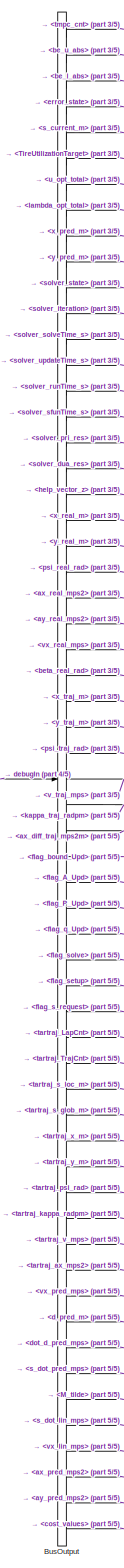
[diagram: root canvas - part 1/5, left side, full height]
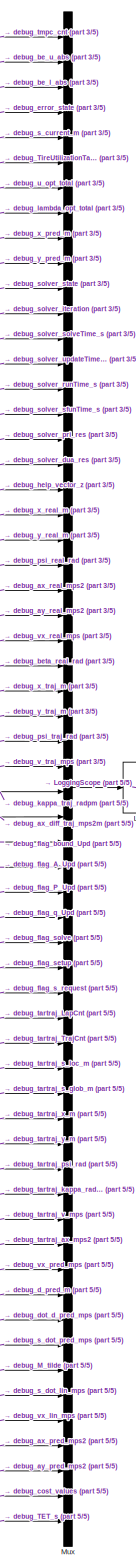
[diagram: root canvas - part 2/5, right side, full height]
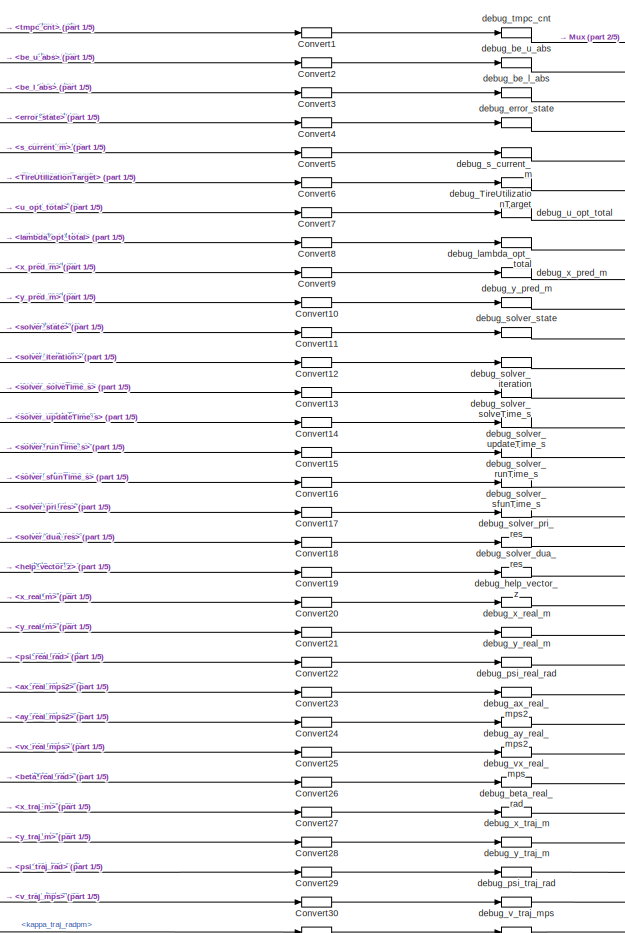
[diagram: root canvas - part 3/5, top center region]
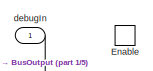
[diagram: root canvas - part 4/5, top left region]
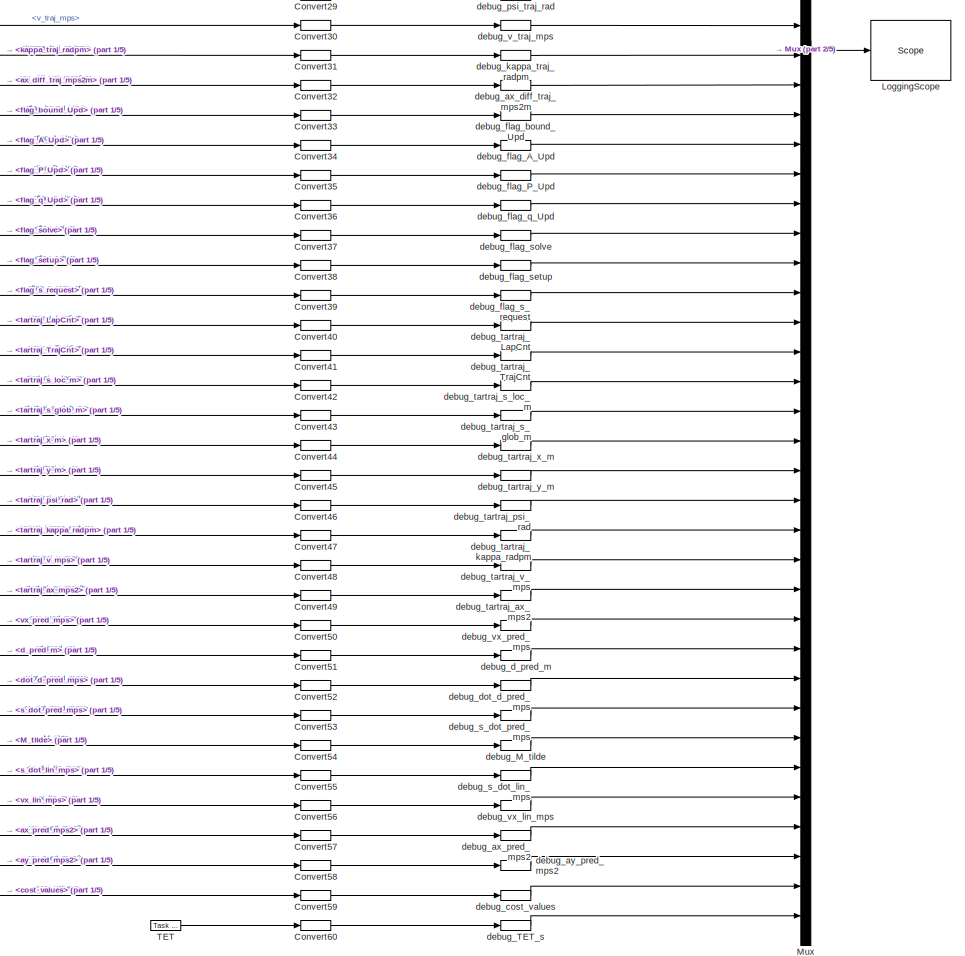
[diagram: root canvas - part 5/5, bottom center region]
MODEL slx_dabca4dcf8a6
KIND model
CONFIG AbsTol = auto
CONFIG EnableMultiTasking = on
CONFIG FixedStep = tS
CONFIG MaxStep = auto
CONFIG MinStep = auto
CONFIG RelTol = 1e-3
CONFIG SampleTimeConstraint = Unconstrained
CONFIG Solver = FixedStepDiscrete
CONFIG SolverName = FixedStepDiscrete
CONFIG StartTime = 0.0
CONFIG StopTime = 10.0
BLOCK [BusSelector] BusOutput
  OutputAsBus = off
  OutputSignals = tmpc_cnt,be_u_abs,be_l_abs,error_state,s_current_m,TireUtilizationTarget,u_opt_total,lambda_opt_total,x_pred_m,y_pred_m,solver_state,solver_iteration,solver_solveTime_s,solver_updateTime_s,solver_runTime_s,solver_sfunTime_s,solver_pri_res,solver_dua_res,help_vector_z,x_real_m,y_real_m,psi_real_rad,ax_real_mps2,ay_real_mps2,vx_real_mps,beta_real_rad,x_traj_m,y_traj_m,psi_traj_rad,v_traj_mps,kappa_t...<+389ch>
  Ports = [1, 59]
BLOCK [DataTypeConversion] Convert1
  OutDataTypeStr = single
BLOCK [DataTypeConversion] Convert10
  OutDataTypeStr = single
BLOCK [DataTypeConversion] Convert11
  OutDataTypeStr = single
BLOCK [DataTypeConversion] Convert12
  OutDataTypeStr = single
BLOCK [DataTypeConversion] Convert13
  OutDataTypeStr = single
BLOCK [DataTypeConversion] Convert14
  OutDataTypeStr = single
BLOCK [DataTypeConversion] Convert15
  OutDataTypeStr = single
BLOCK [DataTypeConversion] Convert16
  OutDataTypeStr = single
BLOCK [DataTypeConversion] Convert17
  OutDataTypeStr = single
BLOCK [DataTypeConversion] Convert18
  OutDataTypeStr = single
BLOCK [DataTypeConversion] Convert19
  OutDataTypeStr = single
BLOCK [DataTypeConversion] Convert2
  OutDataTypeStr = single
BLOCK [DataTypeConversion] Convert20
  OutDataTypeStr = single
BLOCK [DataTypeConversion] Convert21
  OutDataTypeStr = single
BLOCK [DataTypeConversion] Convert22
  OutDataTypeStr = single
BLOCK [DataTypeConversion] Convert23
  OutDataTypeStr = single
BLOCK [DataTypeConversion] Convert24
  OutDataTypeStr = single
BLOCK [DataTypeConversion] Convert25
  OutDataTypeStr = single
BLOCK [DataTypeConversion] Convert26
  OutDataTypeStr = single
BLOCK [DataTypeConversion] Convert27
  OutDataTypeStr = single
BLOCK [DataTypeConversion] Convert28
  OutDataTypeStr = single
BLOCK [DataTypeConversion] Convert29
  OutDataTypeStr = single
BLOCK [DataTypeConversion] Convert3
  OutDataTypeStr = single
BLOCK [DataTypeConversion] Convert30
  OutDataTypeStr = single
BLOCK [DataTypeConversion] Convert31
  OutDataTypeStr = single
BLOCK [DataTypeConversion] Convert32
  OutDataTypeStr = single
BLOCK [DataTypeConversion] Convert33
  OutDataTypeStr = single
BLOCK [DataTypeConversion] Convert34
  OutDataTypeStr = single
BLOCK [DataTypeConversion] Convert35
  OutDataTypeStr = single
BLOCK [DataTypeConversion] Convert36
  OutDataTypeStr = single
BLOCK [DataTypeConversion] Convert37
  OutDataTypeStr = single
BLOCK [DataTypeConversion] Convert38
  OutDataTypeStr = single
BLOCK [DataTypeConversion] Convert39
  OutDataTypeStr = single
BLOCK [DataTypeConversion] Convert4
  OutDataTypeStr = single
BLOCK [DataTypeConversion] Convert40
  OutDataTypeStr = single
BLOCK [DataTypeConversion] Convert41
  OutDataTypeStr = single
BLOCK [DataTypeConversion] Convert42
  OutDataTypeStr = single
BLOCK [DataTypeConversion] Convert43
  OutDataTypeStr = single
BLOCK [DataTypeConversion] Convert44
  OutDataTypeStr = single
BLOCK [DataTypeConversion] Convert45
  OutDataTypeStr = single
BLOCK [DataTypeConversion] Convert46
  OutDataTypeStr = single
BLOCK [DataTypeConversion] Convert47
  OutDataTypeStr = single
BLOCK [DataTypeConversion] Convert48
  OutDataTypeStr = single
BLOCK [DataTypeConversion] Convert49
  OutDataTypeStr = single
BLOCK [DataTypeConversion] Convert5
  OutDataTypeStr = single
BLOCK [DataTypeConversion] Convert50
  OutDataTypeStr = single
BLOCK [DataTypeConversion] Convert51
  OutDataTypeStr = single
BLOCK [DataTypeConversion] Convert52
  OutDataTypeStr = single
BLOCK [DataTypeConversion] Convert53
  OutDataTypeStr = single
BLOCK [DataTypeConversion] Convert54
  OutDataTypeStr = single
BLOCK [DataTypeConversion] Convert55
  OutDataTypeStr = single
BLOCK [DataTypeConversion] Convert56
  OutDataTypeStr = single
BLOCK [DataTypeConversion] Convert57
  OutDataTypeStr = single
BLOCK [DataTypeConversion] Convert58
  OutDataTypeStr = single
BLOCK [DataTypeConversion] Convert59
  OutDataTypeStr = single
BLOCK [DataTypeConversion] Convert6
  OutDataTypeStr = single
BLOCK [DataTypeConversion] Convert60
  OutDataTypeStr = single
BLOCK [DataTypeConversion] Convert7
  OutDataTypeStr = single
BLOCK [DataTypeConversion] Convert8
  OutDataTypeStr = single
BLOCK [DataTypeConversion] Convert9
  OutDataTypeStr = single
BLOCK [EnablePort] Enable
  Ports = []
BLOCK [Reference] LoggingScope  REF=slrtlib/Displays and
Logging/Scope 
  Ports = [1]
  SourceBlock = slrtlib/Displays and\nLogging/Scope
  SourceProductBaseCode = XP
  SourceProductName = Simulink Real-Time
  SourceType = xpcscopeblock
BLOCK [Mux] Mux
  DisplayOption = bar
  Inputs = 60
  Ports = [60, 1]
BLOCK [Reference] TET  REF=slrtlib/Target
Management/Execution
Parameters/Task Execution
Time 
  Ports = [0, 1]
  SourceBlock = slrtlib/Target\nManagement/Execution\nParameters/Task Execution\nTime
  SourceProductBaseCode = XP
  SourceProductName = Simulink Real-Time
  SourceType = xpctet
BLOCK [Inport] debugIn
  IconDisplay = Port number
  OutDataTypeStr = Bus: mvdc_tube_mpc_debug
BLOCK [SignalConversion] debug_M_tilde
  OverrideOpt = off
BLOCK [SignalConversion] debug_TET_s
  OverrideOpt = off
BLOCK [SignalConversion] debug_TireUtilizationTarget
  OverrideOpt = off
BLOCK [SignalConversion] debug_ax_diff_traj_mps2m
  OverrideOpt = off
BLOCK [SignalConversion] debug_ax_pred_mps2
  OverrideOpt = off
BLOCK [SignalConversion] debug_ax_real_mps2
  OverrideOpt = off
BLOCK [SignalConversion] debug_ay_pred_mps2
  OverrideOpt = off
BLOCK [SignalConversion] debug_ay_real_mps2
  OverrideOpt = off
BLOCK [SignalConversion] debug_be_l_abs
  OverrideOpt = off
BLOCK [SignalConversion] debug_be_u_abs
  OverrideOpt = off
BLOCK [SignalConversion] debug_beta_real_rad
  OverrideOpt = off
BLOCK [SignalConversion] debug_cost_values
  OverrideOpt = off
BLOCK [SignalConversion] debug_d_pred_m
  OverrideOpt = off
BLOCK [SignalConversion] debug_dot_d_pred_mps
  OverrideOpt = off
BLOCK [SignalConversion] debug_error_state
  OverrideOpt = off
BLOCK [SignalConversion] debug_flag_A_Upd
  OverrideOpt = off
BLOCK [SignalConversion] debug_flag_P_Upd
  OverrideOpt = off
BLOCK [SignalConversion] debug_flag_bound_Upd
  OverrideOpt = off
BLOCK [SignalConversion] debug_flag_q_Upd
  OverrideOpt = off
BLOCK [SignalConversion] debug_flag_s_request
  OverrideOpt = off
BLOCK [SignalConversion] debug_flag_setup
  OverrideOpt = off
BLOCK [SignalConversion] debug_flag_solve
  OverrideOpt = off
BLOCK [SignalConversion] debug_help_vector_z
  OverrideOpt = off
BLOCK [SignalConversion] debug_kappa_traj_radpm
  OverrideOpt = off
BLOCK [SignalConversion] debug_lambda_opt_total
  OverrideOpt = off
BLOCK [SignalConversion] debug_psi_real_rad
  OverrideOpt = off
BLOCK [SignalConversion] debug_psi_traj_rad
  OverrideOpt = off
BLOCK [SignalConversion] debug_s_current_m
  OverrideOpt = off
BLOCK [SignalConversion] debug_s_dot_lin_mps
  OverrideOpt = off
BLOCK [SignalConversion] debug_s_dot_pred_mps
  OverrideOpt = off
BLOCK [SignalConversion] debug_solver_dua_res
  OverrideOpt = off
BLOCK [SignalConversion] debug_solver_iteration
  OverrideOpt = off
BLOCK [SignalConversion] debug_solver_pri_res
  OverrideOpt = off
BLOCK [SignalConversion] debug_solver_runTime_s
  OverrideOpt = off
BLOCK [SignalConversion] debug_solver_sfunTime_s
  OverrideOpt = off
BLOCK [SignalConversion] debug_solver_solveTime_s
  OverrideOpt = off
BLOCK [SignalConversion] debug_solver_state
  OverrideOpt = off
BLOCK [SignalConversion] debug_solver_updateTime_s
  OverrideOpt = off
BLOCK [SignalConversion] debug_tartraj_LapCnt
  OverrideOpt = off
BLOCK [SignalConversion] debug_tartraj_TrajCnt
  OverrideOpt = off
BLOCK [SignalConversion] debug_tartraj_ax_mps2
  OverrideOpt = off
BLOCK [SignalConversion] debug_tartraj_kappa_radpm
  OverrideOpt = off
BLOCK [SignalConversion] debug_tartraj_psi_rad
  OverrideOpt = off
BLOCK [SignalConversion] debug_tartraj_s_glob_m
  OverrideOpt = off
BLOCK [SignalConversion] debug_tartraj_s_loc_m
  OverrideOpt = off
BLOCK [SignalConversion] debug_tartraj_v_mps
  OverrideOpt = off
BLOCK [SignalConversion] debug_tartraj_x_m
  OverrideOpt = off
BLOCK [SignalConversion] debug_tartraj_y_m
  OverrideOpt = off
BLOCK [SignalConversion] debug_tmpc_cnt
  OverrideOpt = off
BLOCK [SignalConversion] debug_u_opt_total
  OverrideOpt = off
BLOCK [SignalConversion] debug_v_traj_mps
  OverrideOpt = off
BLOCK [SignalConversion] debug_vx_lin_mps
  OverrideOpt = off
BLOCK [SignalConversion] debug_vx_pred_mps
  OverrideOpt = off
BLOCK [SignalConversion] debug_vx_real_mps
  OverrideOpt = off
BLOCK [SignalConversion] debug_x_pred_m
  OverrideOpt = off
BLOCK [SignalConversion] debug_x_real_m
  OverrideOpt = off
BLOCK [SignalConversion] debug_x_traj_m
  OverrideOpt = off
BLOCK [SignalConversion] debug_y_pred_m
  OverrideOpt = off
BLOCK [SignalConversion] debug_y_real_m
  OverrideOpt = off
BLOCK [SignalConversion] debug_y_traj_m
  OverrideOpt = off
LINE BusOutput:1 -> Convert1:1
LINE BusOutput:10 -> Convert10:1
LINE BusOutput:11 -> Convert11:1
LINE BusOutput:12 -> Convert12:1
LINE BusOutput:13 -> Convert13:1
LINE BusOutput:14 -> Convert14:1
LINE BusOutput:15 -> Convert15:1
LINE BusOutput:16 -> Convert16:1
LINE BusOutput:17 -> Convert17:1
LINE BusOutput:18 -> Convert18:1
LINE BusOutput:19 -> Convert19:1
LINE BusOutput:2 -> Convert2:1
LINE BusOutput:20 -> Convert20:1
LINE BusOutput:21 -> Convert21:1
LINE BusOutput:22 -> Convert22:1
LINE BusOutput:23 -> Convert23:1
LINE BusOutput:24 -> Convert24:1
LINE BusOutput:25 -> Convert25:1
LINE BusOutput:26 -> Convert26:1
LINE BusOutput:27 -> Convert27:1
LINE BusOutput:28 -> Convert28:1
LINE BusOutput:29 -> Convert29:1
LINE BusOutput:3 -> Convert3:1
LINE BusOutput:30 -> Convert30:1
LINE BusOutput:31 -> Convert31:1
LINE BusOutput:32 -> Convert32:1
LINE BusOutput:33 -> Convert33:1
LINE BusOutput:34 -> Convert34:1
LINE BusOutput:35 -> Convert35:1
LINE BusOutput:36 -> Convert36:1
LINE BusOutput:37 -> Convert37:1
LINE BusOutput:38 -> Convert38:1
LINE BusOutput:39 -> Convert39:1
LINE BusOutput:4 -> Convert4:1
LINE BusOutput:40 -> Convert40:1
LINE BusOutput:41 -> Convert41:1
LINE BusOutput:42 -> Convert42:1
LINE BusOutput:43 -> Convert43:1
LINE BusOutput:44 -> Convert44:1
LINE BusOutput:45 -> Convert45:1
LINE BusOutput:46 -> Convert46:1
LINE BusOutput:47 -> Convert47:1
LINE BusOutput:48 -> Convert48:1
LINE BusOutput:49 -> Convert49:1
LINE BusOutput:5 -> Convert5:1
LINE BusOutput:50 -> Convert50:1
LINE BusOutput:51 -> Convert51:1
LINE BusOutput:52 -> Convert52:1
LINE BusOutput:53 -> Convert53:1
LINE BusOutput:54 -> Convert54:1
LINE BusOutput:55 -> Convert55:1
LINE BusOutput:56 -> Convert56:1
LINE BusOutput:57 -> Convert57:1
LINE BusOutput:58 -> Convert58:1
LINE BusOutput:59 -> Convert59:1
LINE BusOutput:6 -> Convert6:1
LINE BusOutput:7 -> Convert7:1
LINE BusOutput:8 -> Convert8:1
LINE BusOutput:9 -> Convert9:1
LINE Convert10:1 -> debug_y_pred_m:1
LINE Convert11:1 -> debug_solver_state:1
LINE Convert12:1 -> debug_solver_iteration:1
LINE Convert13:1 -> debug_solver_solveTime_s:1
LINE Convert14:1 -> debug_solver_updateTime_s:1
LINE Convert15:1 -> debug_solver_runTime_s:1
LINE Convert16:1 -> debug_solver_sfunTime_s:1
LINE Convert17:1 -> debug_solver_pri_res:1
LINE Convert18:1 -> debug_solver_dua_res:1
LINE Convert19:1 -> debug_help_vector_z:1
LINE Convert1:1 -> debug_tmpc_cnt:1
LINE Convert20:1 -> debug_x_real_m:1
LINE Convert21:1 -> debug_y_real_m:1
LINE Convert22:1 -> debug_psi_real_rad:1
LINE Convert23:1 -> debug_ax_real_mps2:1
LINE Convert24:1 -> debug_ay_real_mps2:1
LINE Convert25:1 -> debug_vx_real_mps:1
LINE Convert26:1 -> debug_beta_real_rad:1
LINE Convert27:1 -> debug_x_traj_m:1
LINE Convert28:1 -> debug_y_traj_m:1
LINE Convert29:1 -> debug_psi_traj_rad:1
LINE Convert2:1 -> debug_be_u_abs:1
LINE Convert30:1 -> debug_v_traj_mps:1
LINE Convert31:1 -> debug_kappa_traj_radpm:1
LINE Convert32:1 -> debug_ax_diff_traj_mps2m:1
LINE Convert33:1 -> debug_flag_bound_Upd:1
LINE Convert34:1 -> debug_flag_A_Upd:1
LINE Convert35:1 -> debug_flag_P_Upd:1
LINE Convert36:1 -> debug_flag_q_Upd:1
LINE Convert37:1 -> debug_flag_solve:1
LINE Convert38:1 -> debug_flag_setup:1
LINE Convert39:1 -> debug_flag_s_request:1
LINE Convert3:1 -> debug_be_l_abs:1
LINE Convert40:1 -> debug_tartraj_LapCnt:1
LINE Convert41:1 -> debug_tartraj_TrajCnt:1
LINE Convert42:1 -> debug_tartraj_s_loc_m:1
LINE Convert43:1 -> debug_tartraj_s_glob_m:1
LINE Convert44:1 -> debug_tartraj_x_m:1
LINE Convert45:1 -> debug_tartraj_y_m:1
LINE Convert46:1 -> debug_tartraj_psi_rad:1
LINE Convert47:1 -> debug_tartraj_kappa_radpm:1
LINE Convert48:1 -> debug_tartraj_v_mps:1
LINE Convert49:1 -> debug_tartraj_ax_mps2:1
LINE Convert4:1 -> debug_error_state:1
LINE Convert50:1 -> debug_vx_pred_mps:1
LINE Convert51:1 -> debug_d_pred_m:1
LINE Convert52:1 -> debug_dot_d_pred_mps:1
LINE Convert53:1 -> debug_s_dot_pred_mps:1
LINE Convert54:1 -> debug_M_tilde:1
LINE Convert55:1 -> debug_s_dot_lin_mps:1
LINE Convert56:1 -> debug_vx_lin_mps:1
LINE Convert57:1 -> debug_ax_pred_mps2:1
LINE Convert58:1 -> debug_ay_pred_mps2:1
LINE Convert59:1 -> debug_cost_values:1
LINE Convert5:1 -> debug_s_current_m:1
LINE Convert60:1 -> debug_TET_s:1
LINE Convert6:1 -> debug_TireUtilizationTarget:1
LINE Convert7:1 -> debug_u_opt_total:1
LINE Convert8:1 -> debug_lambda_opt_total:1
LINE Convert9:1 -> debug_x_pred_m:1
LINE Mux:1 -> LoggingScope:1
LINE TET:1 -> Convert60:1
LINE debugIn:1 -> BusOutput:1
LINE debug_M_tilde:1 -> Mux:54
LINE debug_TET_s:1 -> Mux:60
LINE debug_TireUtilizationTarget:1 -> Mux:6
LINE debug_ax_diff_traj_mps2m:1 -> Mux:32
LINE debug_ax_pred_mps2:1 -> Mux:57
LINE debug_ax_real_mps2:1 -> Mux:23
LINE debug_ay_pred_mps2:1 -> Mux:58
LINE debug_ay_real_mps2:1 -> Mux:24
LINE debug_be_l_abs:1 -> Mux:3
LINE debug_be_u_abs:1 -> Mux:2
LINE debug_beta_real_rad:1 -> Mux:26
LINE debug_cost_values:1 -> Mux:59
LINE debug_d_pred_m:1 -> Mux:51
LINE debug_dot_d_pred_mps:1 -> Mux:52
LINE debug_error_state:1 -> Mux:4
LINE debug_flag_A_Upd:1 -> Mux:34
LINE debug_flag_P_Upd:1 -> Mux:35
LINE debug_flag_bound_Upd:1 -> Mux:33
LINE debug_flag_q_Upd:1 -> Mux:36
LINE debug_flag_s_request:1 -> Mux:39
LINE debug_flag_setup:1 -> Mux:38
LINE debug_flag_solve:1 -> Mux:37
LINE debug_help_vector_z:1 -> Mux:19
LINE debug_kappa_traj_radpm:1 -> Mux:31
LINE debug_lambda_opt_total:1 -> Mux:8
LINE debug_psi_real_rad:1 -> Mux:22
LINE debug_psi_traj_rad:1 -> Mux:29
LINE debug_s_current_m:1 -> Mux:5
LINE debug_s_dot_lin_mps:1 -> Mux:55
LINE debug_s_dot_pred_mps:1 -> Mux:53
LINE debug_solver_dua_res:1 -> Mux:18
LINE debug_solver_iteration:1 -> Mux:12
LINE debug_solver_pri_res:1 -> Mux:17
LINE debug_solver_runTime_s:1 -> Mux:15
LINE debug_solver_sfunTime_s:1 -> Mux:16
LINE debug_solver_solveTime_s:1 -> Mux:13
LINE debug_solver_state:1 -> Mux:11
LINE debug_solver_updateTime_s:1 -> Mux:14
LINE debug_tartraj_LapCnt:1 -> Mux:40
LINE debug_tartraj_TrajCnt:1 -> Mux:41
LINE debug_tartraj_ax_mps2:1 -> Mux:49
LINE debug_tartraj_kappa_radpm:1 -> Mux:47
LINE debug_tartraj_psi_rad:1 -> Mux:46
LINE debug_tartraj_s_glob_m:1 -> Mux:43
LINE debug_tartraj_s_loc_m:1 -> Mux:42
LINE debug_tartraj_v_mps:1 -> Mux:48
LINE debug_tartraj_x_m:1 -> Mux:44
LINE debug_tartraj_y_m:1 -> Mux:45
LINE debug_tmpc_cnt:1 -> Mux:1
LINE debug_u_opt_total:1 -> Mux:7
LINE debug_v_traj_mps:1 -> Mux:30
LINE debug_vx_lin_mps:1 -> Mux:56
LINE debug_vx_pred_mps:1 -> Mux:50
LINE debug_vx_real_mps:1 -> Mux:25
LINE debug_x_pred_m:1 -> Mux:9
LINE debug_x_real_m:1 -> Mux:20
LINE debug_x_traj_m:1 -> Mux:27
LINE debug_y_pred_m:1 -> Mux:10
LINE debug_y_real_m:1 -> Mux:21
LINE debug_y_traj_m:1 -> Mux:28
